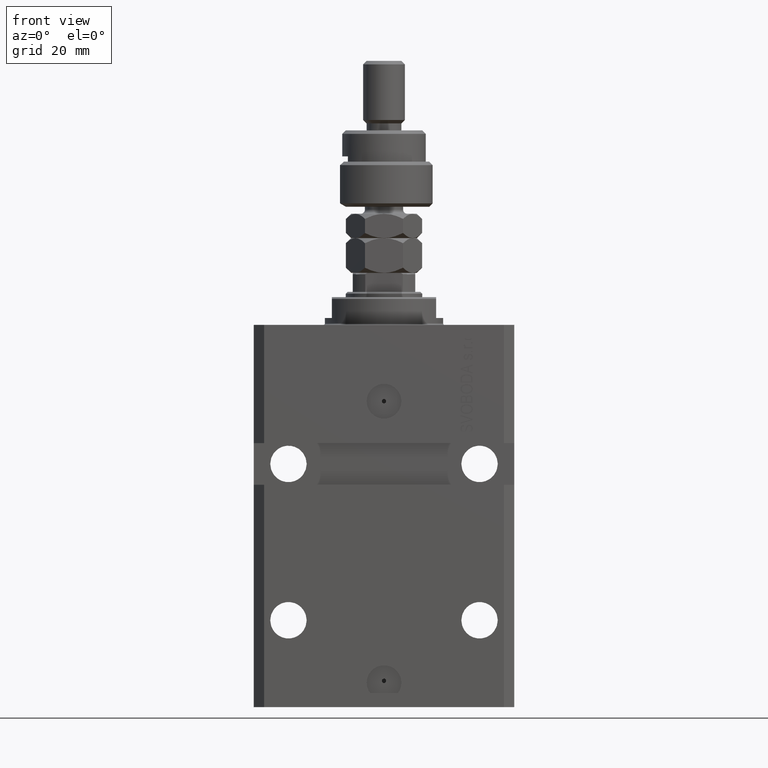
[diagram: clean part render]
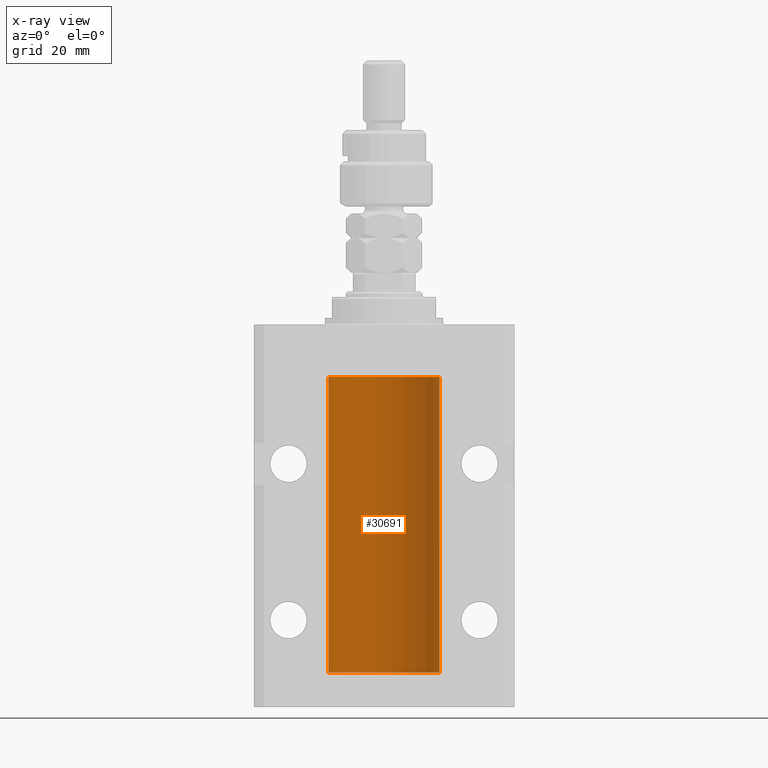
[diagram: x-ray — body ghosted, one internal face saturated and labeled with its STEP entity id]
A machine part, front view, then the same camera in x-ray: the body is ghosted and one INTERNAL B-rep face — a face not visible from any outside direction — is saturated and labeled: STEP entity #30691.
In plain terms, the highlighted cylindrical surface (partial cylindrical patch) has radius 16 mm, axis along (0, 0, 1).
Its self-contained STEP definition (entity closure, byte-faithful):
#447 = CARTESIAN_POINT ( 'NONE',  ( 0.000000000000000000, 0.000000000000000000, -100.0999999999999943 ) ) ;
#1224 = AXIS2_PLACEMENT_3D ( 'NONE', #46381, #35194, #18994 ) ;
#1391 = LINE ( 'NONE', #21213, #22216 ) ;
#2840 = CARTESIAN_POINT ( 'NONE',  ( -16.00000000000000000, 1.959434878635765131E-15, -100.0999999999999943 ) ) ;
#3037 = VECTOR ( 'NONE', #48160, 1000.000000000000000 ) ;
#3284 = VERTEX_POINT ( 'NONE', #15060 ) ;
#3318 = VERTEX_POINT ( 'NONE', #23170 ) ;
#3578 = VERTEX_POINT ( 'NONE', #33282 ) ;
#4693 = CARTESIAN_POINT ( 'NONE',  ( 16.00000000000000000, -7.378931128587136680E-16, -22.62500000000000000 ) ) ;
#5225 = VERTEX_POINT ( 'NONE', #16120 ) ;
#6052 = CARTESIAN_POINT ( 'NONE',  ( 15.98778830858070954, 0.6250000000080517815, -97.99999999999916156 ) ) ;
#6678 = CARTESIAN_POINT ( 'NONE',  ( 15.99070366873610283, 0.5574063959867601170, -98.32639436837558833 ) ) ;
#7548 = AXIS2_PLACEMENT_3D ( 'NONE', #447, #36231, #8308 ) ;
#8262 = CARTESIAN_POINT ( 'NONE',  ( 15.98778830858104172, 0.6249999999996183053, -21.91847885046212951 ) ) ;
#8308 = DIRECTION ( 'NONE',  ( 1.000000000000000000, 0.000000000000000000, 0.000000000000000000 ) ) ;
#8668 = B_SPLINE_CURVE_WITH_KNOTS ( 'NONE', 3,
 ( #38632, #46252, #22911, #34574, #11478, #26964, #34079, #23159 ),
 .UNSPECIFIED., .F., .F.,
 ( 4, 2, 2, 4 ),
 ( 0.0009773326288700682433, 0.001221554802188685399, 0.001465776975507302772, 0.001954221322144537518 ),
 .UNSPECIFIED. ) ;
#9295 = VERTEX_POINT ( 'NONE', #6052 ) ;
#10496 = CARTESIAN_POINT ( 'NONE',  ( 15.99934183755190986, 0.1636877470527013101, -98.60872690654072414 ) ) ;
#11478 = CARTESIAN_POINT ( 'NONE',  ( 15.99228275317786441, 0.5002975944204781644, -97.61642014570176684 ) ) ;
#11542 = CARTESIAN_POINT ( 'NONE',  ( 16.00000000000013145, 3.665532680419208314E-13, -21.37499999999658229 ) ) ;
#11702 = CIRCLE ( 'NONE', #44077, 16.00000000000000000 ) ;
#12328 = CARTESIAN_POINT ( 'NONE',  ( 15.99707608081895494, 0.3151028052309814975, -22.54594170697728117 ) ) ;
#12670 = LINE ( 'NONE', #20537, #25883 ) ;
#12889 = CYLINDRICAL_SURFACE ( 'NONE', #7548, 16.00000000000000000 ) ;
#14108 = CARTESIAN_POINT ( 'NONE',  ( 16.00000000000000000, 0.000000000000000000, -15.00000000000000000 ) ) ;
#14535 = DIRECTION ( 'NONE',  ( -0.000000000000000000, -0.000000000000000000, 1.000000000000000000 ) ) ;
#14545 = EDGE_CURVE ( 'NONE', #43521, #46075, #17728, .T. ) ;
#15060 = CARTESIAN_POINT ( 'NONE',  ( 16.00000000000000000, -7.378931128587136680E-16, -22.62500000000000000 ) ) ;
#15906 = CARTESIAN_POINT ( 'NONE',  ( 15.99228275317787507, 0.5002975944204003378, -21.61642014570181303 ) ) ;
#16093 = ORIENTED_EDGE ( 'NONE', *, *, #20428, .T. ) ;
#16120 = CARTESIAN_POINT ( 'NONE',  ( 16.00000000000000000, -1.835653844722709729E-15, -98.62500000000000000 ) ) ;
#16153 = CARTESIAN_POINT ( 'NONE',  ( 15.98778830858101152, 0.6250000000001202372, -22.16311639173018477 ) ) ;
#16154 = DIRECTION ( 'NONE',  ( 0.000000000000000000, 0.000000000000000000, 1.000000000000000000 ) ) ;
#16399 = CARTESIAN_POINT ( 'NONE',  ( 15.99070695999104252, 0.5461439696926362330, -21.68526802364053552 ) ) ;
#16901 = DIRECTION ( 'NONE',  ( -0.000000000000000000, -0.000000000000000000, 1.000000000000000000 ) ) ;
#17087 = ORIENTED_EDGE ( 'NONE', *, *, #17707, .T. ) ;
#17707 = EDGE_CURVE ( 'NONE', #20408, #5225, #12670, .T. ) ;
#17717 = B_SPLINE_CURVE_WITH_KNOTS ( 'NONE', 3,
 ( #29803, #46284, #10496, #22694, #34606, #6678, #50079, #22194 ),
 .UNSPECIFIED., .F., .F.,
 ( 4, 2, 2, 4 ),
 ( 1.783888443149829469E-18, 0.0002443331572175257886, 0.0004886663144350497342, 0.0009773326288700682433 ),
 .UNSPECIFIED. ) ;
#17728 = LINE ( 'NONE', #35982, #3037 ) ;
#18319 = ORIENTED_EDGE ( 'NONE', *, *, #20375, .T. ) ;
#18994 = DIRECTION ( 'NONE',  ( 1.000000000000000000, 0.000000000000000000, 0.000000000000000000 ) ) ;
#20086 = EDGE_CURVE ( 'NONE', #3318, #31098, #37627, .T. ) ;
#20207 = CARTESIAN_POINT ( 'NONE',  ( 15.99711856062700122, 0.3252985083513916242, -21.44140297987714661 ) ) ;
#20375 = EDGE_CURVE ( 'NONE', #3578, #43521, #45676, .T. ) ;
#20408 = VERTEX_POINT ( 'NONE', #24508 ) ;
#20428 = EDGE_CURVE ( 'NONE', #3284, #3578, #49262, .T. ) ;
#20537 = CARTESIAN_POINT ( 'NONE',  ( 16.00000000000000000, 0.000000000000000000, -100.0999999999999943 ) ) ;
#20663 = CIRCLE ( 'NONE', #1224, 16.00000000000000000 ) ;
#20841 = EDGE_LOOP ( 'NONE', ( #36083, #45011, #17087, #46348, #48776, #22719, #16093, #18319, #27492, #42425 ) ) ;
#21213 = CARTESIAN_POINT ( 'NONE',  ( 16.00000000000000000, 0.000000000000000000, -100.0999999999999943 ) ) ;
#22194 = CARTESIAN_POINT ( 'NONE',  ( 15.98778830858070954, 0.6250000000080517815, -97.99999999999916156 ) ) ;
#22216 = VECTOR ( 'NONE', #16901, 1000.000000000000000 ) ;
#22337 = CARTESIAN_POINT ( 'NONE',  ( -16.00000000000000000, 1.959434878635765131E-15, -15.00000000000000000 ) ) ;
#22694 = CARTESIAN_POINT ( 'NONE',  ( 15.99707608081895138, 0.3151028052310259620, -98.54594170697734512 ) ) ;
#22719 = ORIENTED_EDGE ( 'NONE', *, *, #43230, .T. ) ;
#22911 = CARTESIAN_POINT ( 'NONE',  ( 15.98844460043491367, 0.6087869699337551399, -97.83657454967556077 ) ) ;
#23159 = CARTESIAN_POINT ( 'NONE',  ( 16.00000000000013145, 3.665532692826917502E-13, -97.37499999999657518 ) ) ;
#23170 = CARTESIAN_POINT ( 'NONE',  ( -16.00000000000000000, 1.959434878635765131E-15, -100.0999999999999943 ) ) ;
#23521 = DIRECTION ( 'NONE',  ( 1.000000000000000000, 0.000000000000000000, 0.000000000000000000 ) ) ;
#23770 = CARTESIAN_POINT ( 'NONE',  ( 15.99934183755191341, 0.1636877470526788836, -22.60872690654067796 ) ) ;
#24508 = CARTESIAN_POINT ( 'NONE',  ( 16.00000000000000000, 0.000000000000000000, -100.0999999999999943 ) ) ;
#25883 = VECTOR ( 'NONE', #36012, 1000.000000000000000 ) ;
#26964 = CARTESIAN_POINT ( 'NONE',  ( 15.99711856062700477, 0.3252985083514284281, -97.44140297987712529 ) ) ;
#27492 = ORIENTED_EDGE ( 'NONE', *, *, #14545, .T. ) ;
#27580 = EDGE_CURVE ( 'NONE', #9295, #32346, #8668, .T. ) ;
#29803 = CARTESIAN_POINT ( 'NONE',  ( 16.00000000000000000, -1.835653844722709729E-15, -98.62500000000000000 ) ) ;
#30691 = ADVANCED_FACE ( 'NONE', ( #35240 ), #12889, .F. ) ;
#31098 = VERTEX_POINT ( 'NONE', #22337 ) ;
#31382 = CARTESIAN_POINT ( 'NONE',  ( 15.99999999999999289, 0.1631343969470014366, -21.37500000000020606 ) ) ;
#32346 = VERTEX_POINT ( 'NONE', #48093 ) ;
#33282 = CARTESIAN_POINT ( 'NONE',  ( 15.98778830858070954, 0.6250000000079481977, -21.99999999999914735 ) ) ;
#34079 = CARTESIAN_POINT ( 'NONE',  ( 15.99999999999999645, 0.1631343969470158417, -97.37500000000021316 ) ) ;
#34532 = EDGE_CURVE ( 'NONE', #46075, #31098, #20663, .T. ) ;
#34574 = CARTESIAN_POINT ( 'NONE',  ( 15.99070695999103542, 0.5461439696927204990, -97.68526802364048933 ) ) ;
#34606 = CARTESIAN_POINT ( 'NONE',  ( 15.99548458234361448, 0.3844468804816183471, -98.49947786696355934 ) ) ;
#35185 = CARTESIAN_POINT ( 'NONE',  ( 0.000000000000000000, 0.000000000000000000, -100.0999999999999943 ) ) ;
#35194 = DIRECTION ( 'NONE',  ( 0.000000000000000000, 0.000000000000000000, 1.000000000000000000 ) ) ;
#35240 = FACE_OUTER_BOUND ( 'NONE', #20841, .T. ) ;
#35930 = CARTESIAN_POINT ( 'NONE',  ( 16.00000000000013145, 3.665532680419208314E-13, -21.37499999999658229 ) ) ;
#35982 = CARTESIAN_POINT ( 'NONE',  ( 16.00000000000000000, 0.000000000000000000, -100.0999999999999943 ) ) ;
#36012 = DIRECTION ( 'NONE',  ( -0.000000000000000000, -0.000000000000000000, 1.000000000000000000 ) ) ;
#36083 = ORIENTED_EDGE ( 'NONE', *, *, #20086, .F. ) ;
#36184 = CARTESIAN_POINT ( 'NONE',  ( 15.99548458234361803, 0.3844468804815583396, -22.49947786696350960 ) ) ;
#36231 = DIRECTION ( 'NONE',  ( -0.000000000000000000, -0.000000000000000000, 1.000000000000000000 ) ) ;
#37627 = LINE ( 'NONE', #2840, #41392 ) ;
#38037 = EDGE_CURVE ( 'NONE', #5225, #9295, #17717, .T. ) ;
#38632 = CARTESIAN_POINT ( 'NONE',  ( 15.98778830858070954, 0.6250000000080517815, -97.99999999999916156 ) ) ;
#39242 = CARTESIAN_POINT ( 'NONE',  ( 15.98778830858070954, 0.6250000000079481977, -21.99999999999914735 ) ) ;
#39495 = CARTESIAN_POINT ( 'NONE',  ( 15.98778830858070954, 0.6250000000079481977, -21.99999999999914735 ) ) ;
#41392 = VECTOR ( 'NONE', #14535, 1000.000000000000000 ) ;
#42425 = ORIENTED_EDGE ( 'NONE', *, *, #34532, .T. ) ;
#43127 = EDGE_CURVE ( 'NONE', #20408, #3318, #11702, .T. ) ;
#43230 = EDGE_CURVE ( 'NONE', #32346, #3284, #1391, .T. ) ;
#43521 = VERTEX_POINT ( 'NONE', #11542 ) ;
#43555 = CARTESIAN_POINT ( 'NONE',  ( 15.98844460043492077, 0.6087869699336542206, -21.83657454967558564 ) ) ;
#43802 = CARTESIAN_POINT ( 'NONE',  ( 15.99070366873610638, 0.5574063959866681905, -22.32639436837549596 ) ) ;
#44077 = AXIS2_PLACEMENT_3D ( 'NONE', #35185, #16154, #23521 ) ;
#45011 = ORIENTED_EDGE ( 'NONE', *, *, #43127, .F. ) ;
#45676 = B_SPLINE_CURVE_WITH_KNOTS ( 'NONE', 3,
 ( #39495, #8262, #43555, #16399, #15906, #20207, #31382, #35930 ),
 .UNSPECIFIED., .F., .F.,
 ( 4, 2, 2, 4 ),
 ( 0.0009773326288699671956, 0.001221554802188560499, 0.001465776975507153803, 0.001954221322144333254 ),
 .UNSPECIFIED. ) ;
#46075 = VERTEX_POINT ( 'NONE', #14108 ) ;
#46252 = CARTESIAN_POINT ( 'NONE',  ( 15.98778830858103817, 0.6249999999997223332, -97.91847885046210820 ) ) ;
#46284 = CARTESIAN_POINT ( 'NONE',  ( 16.00000000000001066, 0.08261762387943044628, -98.62500000000001421 ) ) ;
#46348 = ORIENTED_EDGE ( 'NONE', *, *, #38037, .T. ) ;
#46381 = CARTESIAN_POINT ( 'NONE',  ( 0.000000000000000000, 0.000000000000000000, -15.00000000000000000 ) ) ;
#47351 = CARTESIAN_POINT ( 'NONE',  ( 16.00000000000000000, 0.08261762387942135633, -22.62499999999996803 ) ) ;
#48093 = CARTESIAN_POINT ( 'NONE',  ( 16.00000000000013145, 3.665532692826917502E-13, -97.37499999999657518 ) ) ;
#48160 = DIRECTION ( 'NONE',  ( -0.000000000000000000, -0.000000000000000000, 1.000000000000000000 ) ) ;
#48776 = ORIENTED_EDGE ( 'NONE', *, *, #27580, .T. ) ;
#49262 = B_SPLINE_CURVE_WITH_KNOTS ( 'NONE', 3,
 ( #4693, #47351, #23770, #12328, #36184, #43802, #16153, #39242 ),
 .UNSPECIFIED., .F., .F.,
 ( 4, 2, 2, 4 ),
 ( 1.864948331951035013E-18, 0.0002443331572174913110, 0.0004886663144349807789, 0.0009773326288699671956 ),
 .UNSPECIFIED. ) ;
#50079 = CARTESIAN_POINT ( 'NONE',  ( 15.98778830858101685, 0.6250000000002223777, -98.16311639173024162 ) ) ;